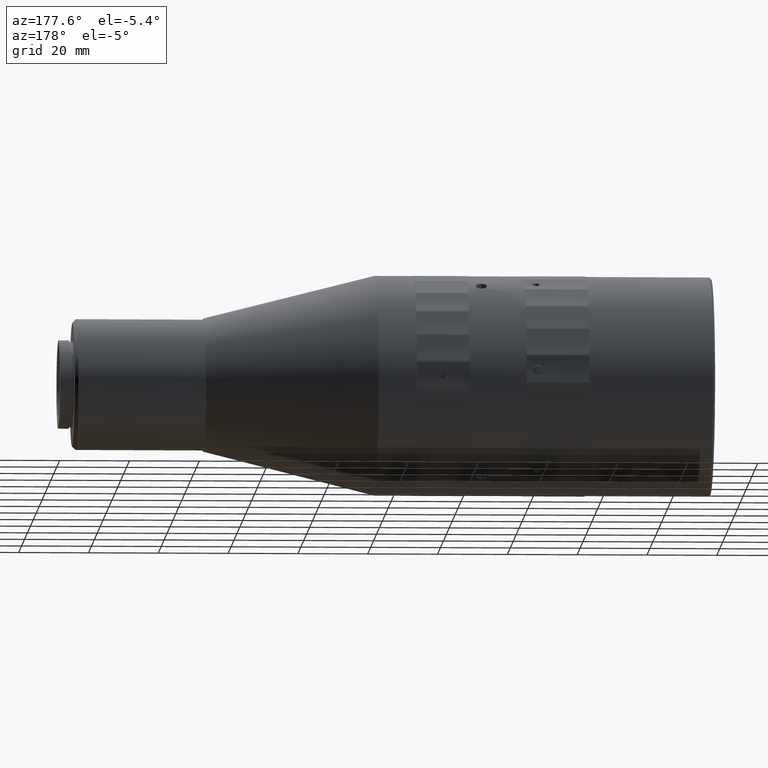
[diagram: clean part render]
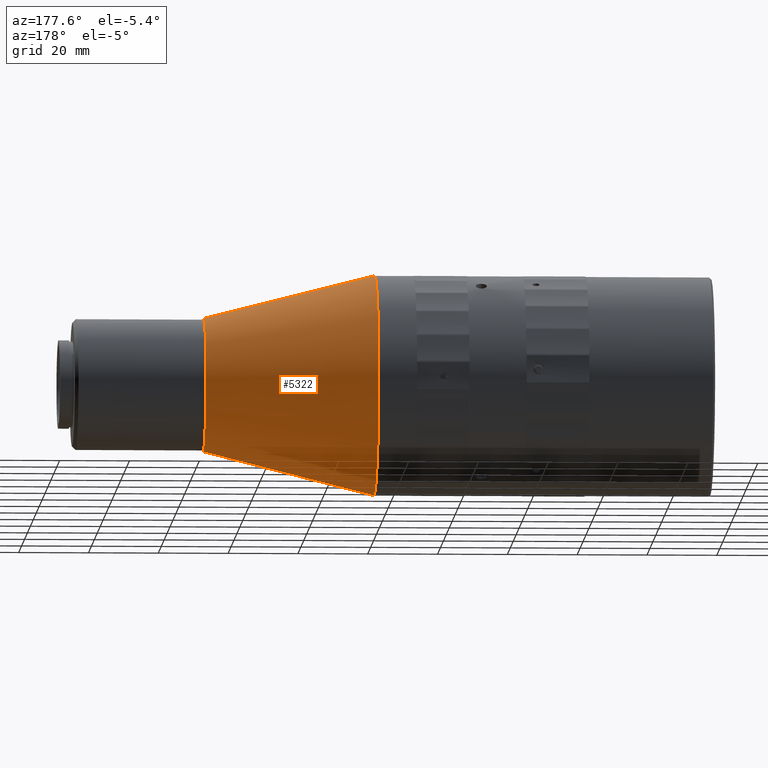
[diagram: same view with one face highlighted and labeled with its STEP entity id]
A machine part, auxiliary view. The second image highlights one B-rep face of the part: STEP entity #5322.
In plain terms, the highlighted conical surface has half-angle 14.201 deg.
Its self-contained STEP definition (entity closure, byte-faithful):
#1212 = DIRECTION ( 'NONE',  ( -0.9694402031123322550, -0.007808320776762408405, -0.2452034312895461921 ) ) ;
#2860 = DIRECTION ( 'NONE',  ( -1.000000000000000000, 0.000000000000000000, 0.000000000000000000 ) ) ;
#2916 = DIRECTION ( 'NONE',  ( -0.9694402031123322550, 0.007808320776762438763, 0.2452034312895461921 ) ) ;
#3513 = ORIENTED_EDGE ( 'NONE', *, *, #20591, .T. ) ;
#3606 = AXIS2_PLACEMENT_3D ( 'NONE', #9793, #2860, #6296 ) ;
#4218 = EDGE_CURVE ( 'NONE', #48085, #24564, #47591, .T. ) ;
#4436 = ORIENTED_EDGE ( 'NONE', *, *, #43815, .T. ) ;
#5033 = EDGE_LOOP ( 'NONE', ( #3513, #48436, #4436, #30336 ) ) ;
#5322 = ADVANCED_FACE ( 'NONE', ( #17083 ), #25848, .T. ) ;
#5379 = CARTESIAN_POINT ( 'NONE',  ( 33.19362584244050396, 5.521608132288194248, 198.9330666898957816 ) ) ;
#6296 = DIRECTION ( 'NONE',  ( 0.000000000000000000, 0.03182812208006297744, 0.9994933569788527761 ) ) ;
#7886 = DIRECTION ( 'NONE',  ( -1.000000000000000000, 0.000000000000000000, 0.000000000000000000 ) ) ;
#8053 = CARTESIAN_POINT ( 'NONE',  ( -15.80637415756080344, 4.913691000558999988, 179.8427435715999820 ) ) ;
#8910 = LINE ( 'NONE', #29814, #33286 ) ;
#9203 = CARTESIAN_POINT ( 'NONE',  ( -15.80637415756080344, 3.911105155037019276, 148.3587028267661196 ) ) ;
#9793 = CARTESIAN_POINT ( 'NONE',  ( -15.80637415756085140, 4.913691000558999988, 179.8427435715999820 ) ) ;
#14498 = CARTESIAN_POINT ( 'NONE',  ( -15.80637415756080344, 5.916276846080984697, 211.3267843164338728 ) ) ;
#15989 = DIRECTION ( 'NONE',  ( 0.000000000000000000, 0.03182812208006301907, 0.9994933569788528871 ) ) ;
#17083 = FACE_OUTER_BOUND ( 'NONE', #5033, .T. ) ;
#19000 = CARTESIAN_POINT ( 'NONE',  ( -15.80637415756085140, 5.916276846080984697, 211.3267843164338728 ) ) ;
#20591 = EDGE_CURVE ( 'NONE', #48085, #52925, #37575, .T. ) ;
#24564 = VERTEX_POINT ( 'NONE', #14498 ) ;
#25219 = DIRECTION ( 'NONE',  ( 1.000000000000000000, 0.000000000000000000, 0.000000000000000000 ) ) ;
#25848 = CONICAL_SURFACE ( 'NONE', #3606, 31.50000000000001776, 0.2478577338667383445 ) ;
#29814 = CARTESIAN_POINT ( 'NONE',  ( -15.80637415756085140, 3.911105155037019276, 148.3587028267661196 ) ) ;
#30336 = ORIENTED_EDGE ( 'NONE', *, *, #4218, .F. ) ;
#31195 = VERTEX_POINT ( 'NONE', #9203 ) ;
#33286 = VECTOR ( 'NONE', #1212, 1000.000000000000000 ) ;
#37575 = CIRCLE ( 'NONE', #51252, 19.09999999999969233 ) ;
#37744 = CIRCLE ( 'NONE', #43692, 31.50000000000001776 ) ;
#41422 = VECTOR ( 'NONE', #2916, 1000.000000000000000 ) ;
#41512 = DIRECTION ( 'NONE',  ( 0.000000000000000000, 0.03182812208006297744, 0.9994933569788527761 ) ) ;
#43265 = CARTESIAN_POINT ( 'NONE',  ( 33.19362584244050396, 4.305773868829810169, 160.7524204533042109 ) ) ;
#43692 = AXIS2_PLACEMENT_3D ( 'NONE', #8053, #25219, #41512 ) ;
#43815 = EDGE_CURVE ( 'NONE', #31195, #24564, #37744, .T. ) ;
#46567 = EDGE_CURVE ( 'NONE', #52925, #31195, #8910, .T. ) ;
#47591 = LINE ( 'NONE', #19000, #41422 ) ;
#48085 = VERTEX_POINT ( 'NONE', #5379 ) ;
#48436 = ORIENTED_EDGE ( 'NONE', *, *, #46567, .T. ) ;
#51252 = AXIS2_PLACEMENT_3D ( 'NONE', #52603, #7886, #15989 ) ;
#52603 = CARTESIAN_POINT ( 'NONE',  ( 33.19362584244050396, 4.913691000558999988, 179.8427435715999820 ) ) ;
#52925 = VERTEX_POINT ( 'NONE', #43265 ) ;